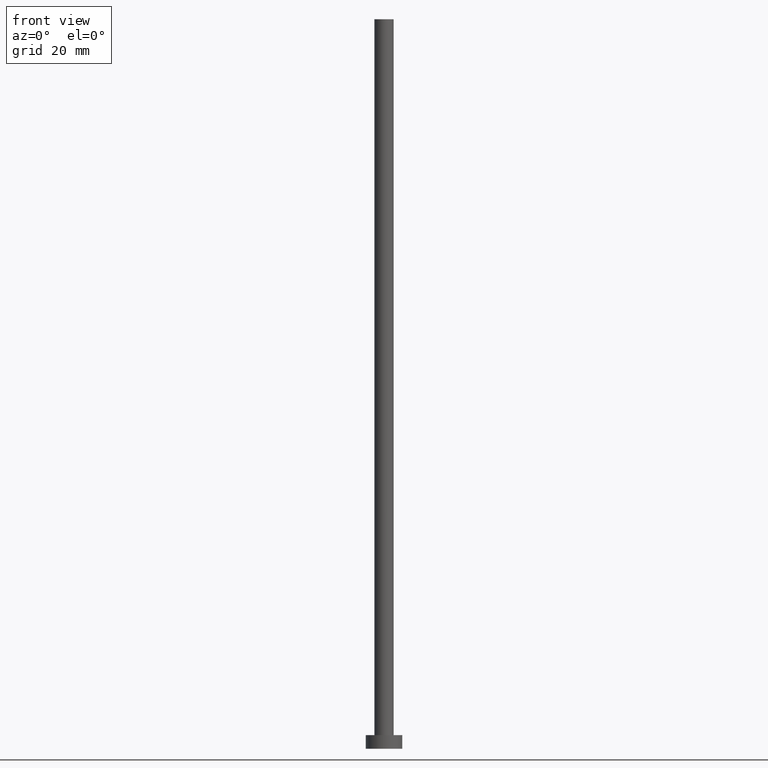
[diagram: clean part render]
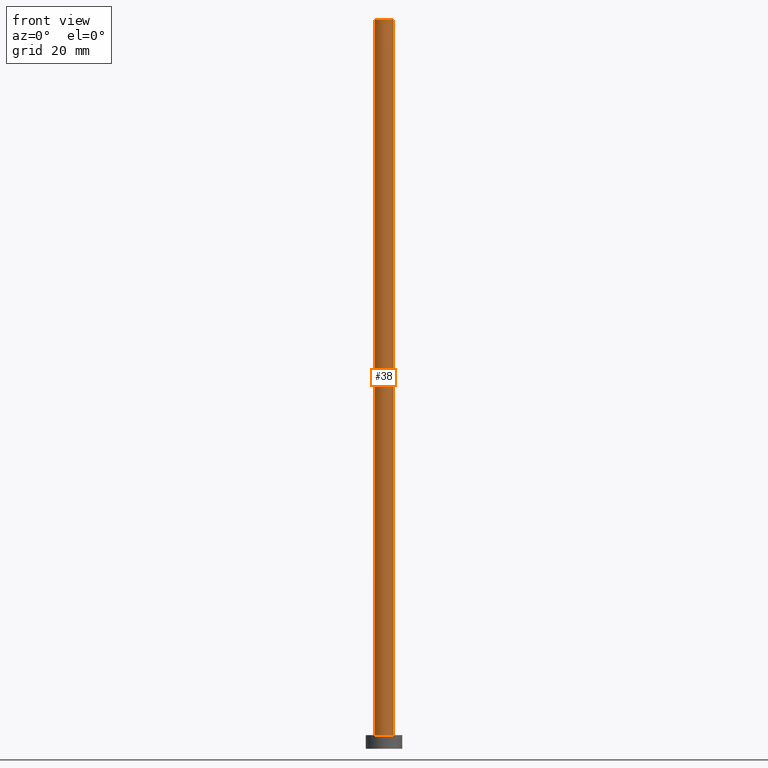
[diagram: same view with one face highlighted and labeled with its STEP entity id]
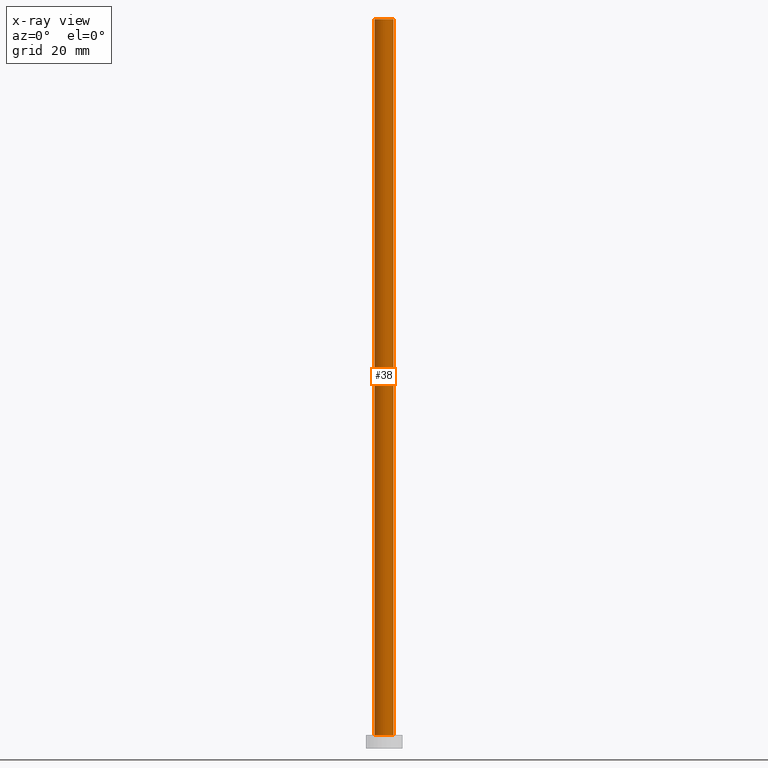
[diagram: x-ray of the same camera — body ghosted, the highlighted face saturated]
A machine part, front view. The second image highlights one B-rep face of the part: STEP entity #38.
The next image is the same camera in x-ray: the body ghosted, the highlighted face saturated — about 0% of this face is hidden behind the body in this view.
In plain terms, the highlighted cylindrical surface (edge-blend (fillet) strip) has radius 2.1 mm, axis along (-0, -0, -1).
Its self-contained STEP definition (entity closure, byte-faithful):
#3 = EDGE_CURVE ( 'NONE', #191, #210, #122, .T. ) ;
#7 = CYLINDRICAL_SURFACE ( 'NONE', #14, 2.100000000000000089 ) ;
#10 = LINE ( 'NONE', #228, #236 ) ;
#14 = AXIS2_PLACEMENT_3D ( 'NONE', #50, #204, #154 ) ;
#15 = DIRECTION ( 'NONE',  ( 0.000000000000000000, 0.000000000000000000, 1.000000000000000000 ) ) ;
#25 = CARTESIAN_POINT ( 'NONE',  ( -2.100000000000000089, 0.000000000000000000, 3.000000000000000000 ) ) ;
#33 = CIRCLE ( 'NONE', #241, 2.100000000000000089 ) ;
#36 = CARTESIAN_POINT ( 'NONE',  ( 0.000000000000000000, 0.000000000000000000, 160.0000000000000000 ) ) ;
#38 = ADVANCED_FACE ( 'NONE', ( #189 ), #7, .T. ) ;
#50 = CARTESIAN_POINT ( 'NONE',  ( 0.000000000000000000, 0.000000000000000000, 160.0000000000000000 ) ) ;
#63 = VECTOR ( 'NONE', #134, 1000.000000000000000 ) ;
#74 = CARTESIAN_POINT ( 'NONE',  ( -2.100000000000000089, 0.000000000000000000, 160.0000000000000000 ) ) ;
#76 = CARTESIAN_POINT ( 'NONE',  ( 2.100000000000000089, 2.571758278209441957E-16, 160.0000000000000000 ) ) ;
#81 = EDGE_CURVE ( 'NONE', #210, #142, #10, .T. ) ;
#94 = CARTESIAN_POINT ( 'NONE',  ( -2.100000000000000089, 0.000000000000000000, 160.0000000000000000 ) ) ;
#103 = ORIENTED_EDGE ( 'NONE', *, *, #3, .F. ) ;
#106 = EDGE_CURVE ( 'NONE', #219, #142, #33, .T. ) ;
#113 = CARTESIAN_POINT ( 'NONE',  ( 2.100000000000000089, 2.571758278209441957E-16, 3.000000000000000000 ) ) ;
#118 = AXIS2_PLACEMENT_3D ( 'NONE', #36, #15, #168 ) ;
#122 = CIRCLE ( 'NONE', #118, 2.100000000000000089 ) ;
#129 = DIRECTION ( 'NONE',  ( -0.000000000000000000, -0.000000000000000000, -1.000000000000000000 ) ) ;
#134 = DIRECTION ( 'NONE',  ( -0.000000000000000000, -0.000000000000000000, -1.000000000000000000 ) ) ;
#142 = VERTEX_POINT ( 'NONE', #113 ) ;
#154 = DIRECTION ( 'NONE',  ( -1.000000000000000000, 0.000000000000000000, 0.000000000000000000 ) ) ;
#168 = DIRECTION ( 'NONE',  ( 1.000000000000000000, 0.000000000000000000, 0.000000000000000000 ) ) ;
#180 = ORIENTED_EDGE ( 'NONE', *, *, #252, .T. ) ;
#189 = FACE_OUTER_BOUND ( 'NONE', #240, .T. ) ;
#191 = VERTEX_POINT ( 'NONE', #94 ) ;
#198 = CARTESIAN_POINT ( 'NONE',  ( 0.000000000000000000, 0.000000000000000000, 3.000000000000000000 ) ) ;
#199 = ORIENTED_EDGE ( 'NONE', *, *, #106, .T. ) ;
#204 = DIRECTION ( 'NONE',  ( -0.000000000000000000, -0.000000000000000000, -1.000000000000000000 ) ) ;
#208 = ORIENTED_EDGE ( 'NONE', *, *, #81, .F. ) ;
#210 = VERTEX_POINT ( 'NONE', #76 ) ;
#219 = VERTEX_POINT ( 'NONE', #25 ) ;
#228 = CARTESIAN_POINT ( 'NONE',  ( 2.100000000000000089, 2.571758278209441957E-16, 160.0000000000000000 ) ) ;
#232 = DIRECTION ( 'NONE',  ( 1.000000000000000000, 0.000000000000000000, 0.000000000000000000 ) ) ;
#236 = VECTOR ( 'NONE', #129, 1000.000000000000000 ) ;
#240 = EDGE_LOOP ( 'NONE', ( #208, #103, #180, #199 ) ) ;
#241 = AXIS2_PLACEMENT_3D ( 'NONE', #198, #254, #232 ) ;
#250 = LINE ( 'NONE', #74, #63 ) ;
#252 = EDGE_CURVE ( 'NONE', #191, #219, #250, .T. ) ;
#254 = DIRECTION ( 'NONE',  ( 0.000000000000000000, 0.000000000000000000, 1.000000000000000000 ) ) ;